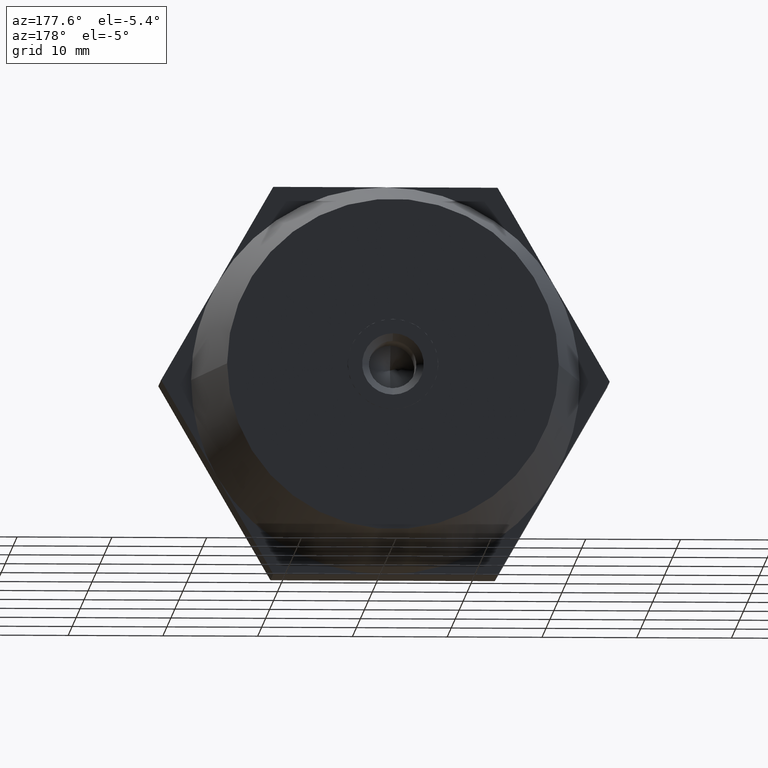
[diagram: clean part render]
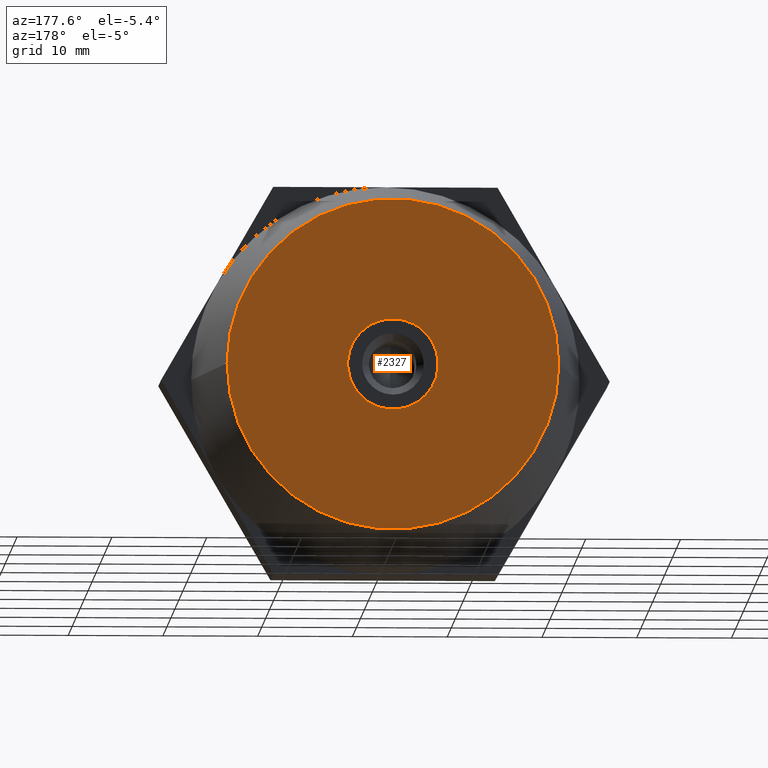
[diagram: same view with one face highlighted and labeled with its STEP entity id]
A machine part, auxiliary view. The second image highlights one B-rep face of the part: STEP entity #2327.
In plain terms, the highlighted planar face has unit normal (-0, 1, 0).
Its self-contained STEP definition (entity closure, byte-faithful):
#1 = FACE_BOUND ( 'NONE', #2667, .T. ) ;
#78 = EDGE_CURVE ( 'NONE', #3287, #2694, #2297, .T. ) ;
#163 = DIRECTION ( 'NONE',  ( 1.224646799147353900E-016, -1.000000000000000000, -0.0000000000000000000 ) ) ;
#173 = VERTEX_POINT ( 'NONE', #2713 ) ;
#183 = DIRECTION ( 'NONE',  ( -1.000000000000000000, 0.0000000000000000000, 0.0000000000000000000 ) ) ;
#189 = CIRCLE ( 'NONE', #2443, 4.772500000000000000 ) ;
#215 = CARTESIAN_POINT ( 'NONE',  ( -1.637040452729150500E-030, 22.50000000000000000, -4.772500000000000000 ) ) ;
#252 = ORIENTED_EDGE ( 'NONE', *, *, #78, .T. ) ;
#327 = VECTOR ( 'NONE', #3659, 1000.000000000000000 ) ;
#333 = DIRECTION ( 'NONE',  ( -1.000000000000000000, 0.0000000000000000000, 1.776356839400250500E-015 ) ) ;
#371 = LINE ( 'NONE', #764, #3218 ) ;
#374 = CARTESIAN_POINT ( 'NONE',  ( 2.648668211795610200, 22.50000000000000000, -3.970052008957039900 ) ) ;
#388 = VERTEX_POINT ( 'NONE', #2293 ) ;
#400 = ORIENTED_EDGE ( 'NONE', *, *, #1738, .T. ) ;
#500 = VERTEX_POINT ( 'NONE', #3512 ) ;
#522 = CARTESIAN_POINT ( 'NONE',  ( -5.844626848930769500E-016, 22.50000000000000000, 0.0000000000000000000 ) ) ;
#615 = VECTOR ( 'NONE', #897, 1000.000000000000000 ) ;
#628 = DIRECTION ( 'NONE',  ( -1.224646799147353900E-016, 1.000000000000000000, 0.0000000000000000000 ) ) ;
#681 = DIRECTION ( 'NONE',  ( -0.8660254037844387100, -1.060575238724905700E-016, -0.4999999999999998900 ) ) ;
#735 = DIRECTION ( 'NONE',  ( -1.224646799147353900E-016, 1.000000000000000000, 0.0000000000000000000 ) ) ;
#752 = EDGE_CURVE ( 'NONE', #388, #3698, #2258, .T. ) ;
#764 = CARTESIAN_POINT ( 'NONE',  ( -15.50625000000000000, 22.50000000000000000, 3.453276297590429900 ) ) ;
#779 = CARTESIAN_POINT ( 'NONE',  ( -2.113831788204225200, 22.50000000000000000, 4.278839962089930000 ) ) ;
#800 = CARTESIAN_POINT ( 'NONE',  ( -2.624579619658254900E-031, 22.50000000000000000, 0.0000000000000000000 ) ) ;
#827 = CARTESIAN_POINT ( 'NONE',  ( -4.762500000000000200, 22.50000000000000000, 1.607200604843199800E-014 ) ) ;
#849 = ORIENTED_EDGE ( 'NONE', *, *, #1208, .T. ) ;
#897 = DIRECTION ( 'NONE',  ( -0.8660254037844387100, -1.060575238724907700E-016, 0.4999999999999998900 ) ) ;
#908 = AXIS2_PLACEMENT_3D ( 'NONE', #3618, #1204, #3375 ) ;
#944 = DIRECTION ( 'NONE',  ( 1.224646799147353900E-016, -1.000000000000000000, -0.0000000000000000000 ) ) ;
#956 = CARTESIAN_POINT ( 'NONE',  ( -5.844626848930769500E-016, 22.50000000000000000, 0.0000000000000000000 ) ) ;
#998 = LINE ( 'NONE', #3295, #615 ) ;
#1011 = DIRECTION ( 'NONE',  ( 1.261786539621752000E-015, 1.545242846954995000E-031, -1.000000000000000000 ) ) ;
#1096 = DIRECTION ( 'NONE',  ( 1.224646799147353900E-016, -1.000000000000000000, -0.0000000000000000000 ) ) ;
#1106 = VERTEX_POINT ( 'NONE', #779 ) ;
#1204 = DIRECTION ( 'NONE',  ( 1.224646799147353900E-016, -1.000000000000000000, -0.0000000000000000000 ) ) ;
#1208 = EDGE_CURVE ( 'NONE', #3572, #388, #3717, .T. ) ;
#1247 = AXIS2_PLACEMENT_3D ( 'NONE', #3145, #735, #2856 ) ;
#1249 = CARTESIAN_POINT ( 'NONE',  ( -2.648668211795669700, 22.50000000000000000, -3.970052008956999900 ) ) ;
#1290 = ORIENTED_EDGE ( 'NONE', *, *, #2232, .T. ) ;
#1342 = VERTEX_POINT ( 'NONE', #1249 ) ;
#1344 = EDGE_CURVE ( 'NONE', #500, #1768, #1744, .T. ) ;
#1349 = EDGE_CURVE ( 'NONE', #3059, #2109, #1922, .T. ) ;
#1366 = DIRECTION ( 'NONE',  ( 0.8660254037844383700, 1.060575238724906500E-016, -0.5000000000000003300 ) ) ;
#1407 = CIRCLE ( 'NONE', #2536, 4.772500000000000000 ) ;
#1408 = ORIENTED_EDGE ( 'NONE', *, *, #1481, .T. ) ;
#1423 = DIRECTION ( 'NONE',  ( -1.000000000000000000, 0.0000000000000000000, 0.0000000000000000000 ) ) ;
#1456 = ORIENTED_EDGE ( 'NONE', *, *, #1349, .T. ) ;
#1481 = EDGE_CURVE ( 'NONE', #2109, #3572, #189, .T. ) ;
#1485 = AXIS2_PLACEMENT_3D ( 'NONE', #1647, #163, #183 ) ;
#1540 = VECTOR ( 'NONE', #681, 1000.000000000000000 ) ;
#1550 = DIRECTION ( 'NONE',  ( -1.000000000000000000, 0.0000000000000000000, 0.0000000000000000000 ) ) ;
#1589 = VECTOR ( 'NONE', #2305, 1000.000000000000000 ) ;
#1592 = CARTESIAN_POINT ( 'NONE',  ( -4.762500000000000200, 22.50000000000000000, 0.3087879531329210700 ) ) ;
#1647 = CARTESIAN_POINT ( 'NONE',  ( -5.844626848930769500E-016, 22.50000000000000000, 0.0000000000000000000 ) ) ;
#1669 = CARTESIAN_POINT ( 'NONE',  ( 4.762500000000000200, 22.50000000000000000, -0.3087879531334870600 ) ) ;
#1679 = EDGE_CURVE ( 'NONE', #3707, #2512, #3633, .T. ) ;
#1681 = CARTESIAN_POINT ( 'NONE',  ( 4.762500000000000200, 22.50000000000000000, 0.0000000000000000000 ) ) ;
#1699 = LINE ( 'NONE', #2825, #1540 ) ;
#1710 = EDGE_CURVE ( 'NONE', #2694, #3287, #3083, .T. ) ;
#1738 = EDGE_CURVE ( 'NONE', #1768, #3325, #3593, .T. ) ;
#1744 = CIRCLE ( 'NONE', #908, 4.772500000000000000 ) ;
#1762 = AXIS2_PLACEMENT_3D ( 'NONE', #800, #2904, #2006 ) ;
#1768 = VERTEX_POINT ( 'NONE', #1592 ) ;
#1812 = DIRECTION ( 'NONE',  ( -1.000000000000000000, -1.982541115402065400E-016, 0.0000000000000000000 ) ) ;
#1912 = AXIS2_PLACEMENT_3D ( 'NONE', #522, #1096, #3221 ) ;
#1922 = LINE ( 'NONE', #3364, #327 ) ;
#1930 = ORIENTED_EDGE ( 'NONE', *, *, #3170, .T. ) ;
#2006 = DIRECTION ( 'NONE',  ( -1.000000000000000000, -1.982541115402065400E-016, 0.0000000000000000000 ) ) ;
#2055 = AXIS2_PLACEMENT_3D ( 'NONE', #2454, #3338, #333 ) ;
#2085 = ORIENTED_EDGE ( 'NONE', *, *, #2702, .T. ) ;
#2109 = VERTEX_POINT ( 'NONE', #374 ) ;
#2122 = CARTESIAN_POINT ( 'NONE',  ( 17.50000000000000000, 22.50000000000000400, 0.0000000000000000000 ) ) ;
#2231 = ORIENTED_EDGE ( 'NONE', *, *, #3584, .T. ) ;
#2232 = EDGE_CURVE ( 'NONE', #1106, #500, #1699, .T. ) ;
#2258 = CIRCLE ( 'NONE', #2390, 4.772500000000000000 ) ;
#2276 = VECTOR ( 'NONE', #1011, 1000.000000000000000 ) ;
#2289 = ORIENTED_EDGE ( 'NONE', *, *, #1679, .T. ) ;
#2293 = CARTESIAN_POINT ( 'NONE',  ( 4.762500000000000200, 22.50000000000000000, 0.3087879531335155400 ) ) ;
#2297 = CIRCLE ( 'NONE', #3026, 17.50000000000000000 ) ;
#2305 = DIRECTION ( 'NONE',  ( 0.0000000000000000000, 0.0000000000000000000, 1.000000000000000000 ) ) ;
#2327 = ADVANCED_FACE ( 'NONE', ( #2459, #1 ), #3174, .T. ) ;
#2333 = CARTESIAN_POINT ( 'NONE',  ( -5.844626848930769500E-016, 22.50000000000000000, 0.0000000000000000000 ) ) ;
#2375 = EDGE_CURVE ( 'NONE', #1342, #3707, #371, .T. ) ;
#2390 = AXIS2_PLACEMENT_3D ( 'NONE', #956, #944, #1550 ) ;
#2396 = CARTESIAN_POINT ( 'NONE',  ( -2.624579619658254900E-031, 22.50000000000000000, 0.0000000000000000000 ) ) ;
#2443 = AXIS2_PLACEMENT_3D ( 'NONE', #2333, #3525, #1423 ) ;
#2454 = CARTESIAN_POINT ( 'NONE',  ( -5.844626848930769500E-016, 22.50000000000000000, 0.0000000000000000000 ) ) ;
#2459 = FACE_OUTER_BOUND ( 'NONE', #2930, .T. ) ;
#2512 = VERTEX_POINT ( 'NONE', #215 ) ;
#2536 = AXIS2_PLACEMENT_3D ( 'NONE', #2658, #2924, #3242 ) ;
#2658 = CARTESIAN_POINT ( 'NONE',  ( -5.844626848930769500E-016, 22.50000000000000000, 0.0000000000000000000 ) ) ;
#2667 = EDGE_LOOP ( 'NONE', ( #1456, #1408, #849, #3207, #3692, #2085, #1290, #3564, #400, #2231, #3542, #2289, #1930 ) ) ;
#2694 = VERTEX_POINT ( 'NONE', #3366 ) ;
#2702 = EDGE_CURVE ( 'NONE', #173, #1106, #3136, .T. ) ;
#2713 = CARTESIAN_POINT ( 'NONE',  ( 2.113831788203889900, 22.50000000000000000, 4.278839962090089900 ) ) ;
#2825 = CARTESIAN_POINT ( 'NONE',  ( -15.50625000000000000, 22.50000000000000000, -3.453276297590414800 ) ) ;
#2856 = DIRECTION ( 'NONE',  ( -1.000000000000000000, -1.224646799147353900E-016, 0.0000000000000000000 ) ) ;
#2882 = CARTESIAN_POINT ( 'NONE',  ( 2.113831788204440200, 22.50000000000000000, -4.278839962089819900 ) ) ;
#2904 = DIRECTION ( 'NONE',  ( -1.224646799147353900E-016, 1.000000000000000000, 0.0000000000000000000 ) ) ;
#2924 = DIRECTION ( 'NONE',  ( 1.224646799147353900E-016, -1.000000000000000000, -0.0000000000000000000 ) ) ;
#2930 = EDGE_LOOP ( 'NONE', ( #252, #3405 ) ) ;
#3026 = AXIS2_PLACEMENT_3D ( 'NONE', #2396, #628, #1812 ) ;
#3059 = VERTEX_POINT ( 'NONE', #2882 ) ;
#3083 = CIRCLE ( 'NONE', #1762, 17.50000000000000000 ) ;
#3136 = CIRCLE ( 'NONE', #2055, 4.772500000000000000 ) ;
#3145 = CARTESIAN_POINT ( 'NONE',  ( -17.50000000000000000, 22.50000000000000000, 0.0000000000000000000 ) ) ;
#3170 = EDGE_CURVE ( 'NONE', #2512, #3059, #1407, .T. ) ;
#3174 = PLANE ( 'NONE',  #1247 ) ;
#3207 = ORIENTED_EDGE ( 'NONE', *, *, #752, .T. ) ;
#3218 = VECTOR ( 'NONE', #1366, 1000.000000000000100 ) ;
#3221 = DIRECTION ( 'NONE',  ( -1.000000000000000000, 0.0000000000000000000, 0.0000000000000000000 ) ) ;
#3242 = DIRECTION ( 'NONE',  ( -1.000000000000000000, 0.0000000000000000000, -8.881784197001252300E-016 ) ) ;
#3287 = VERTEX_POINT ( 'NONE', #2122 ) ;
#3295 = CARTESIAN_POINT ( 'NONE',  ( -10.74375000000000000, 22.50000000000000000, 11.70216826863721900 ) ) ;
#3325 = VERTEX_POINT ( 'NONE', #3733 ) ;
#3338 = DIRECTION ( 'NONE',  ( 1.224646799147353900E-016, -1.000000000000000000, -0.0000000000000000000 ) ) ;
#3364 = CARTESIAN_POINT ( 'NONE',  ( -10.74375000000000000, 22.50000000000000000, -11.70216826863728000 ) ) ;
#3366 = CARTESIAN_POINT ( 'NONE',  ( -17.50000000000000000, 22.49999999999999600, 2.326828918379970600E-015 ) ) ;
#3375 = DIRECTION ( 'NONE',  ( -1.000000000000000000, 0.0000000000000000000, 2.664535259100375700E-015 ) ) ;
#3405 = ORIENTED_EDGE ( 'NONE', *, *, #1710, .T. ) ;
#3512 = CARTESIAN_POINT ( 'NONE',  ( -2.648668211795810000, 22.50000000000000000, 3.970052008956909800 ) ) ;
#3525 = DIRECTION ( 'NONE',  ( 1.224646799147353900E-016, -1.000000000000000000, -0.0000000000000000000 ) ) ;
#3542 = ORIENTED_EDGE ( 'NONE', *, *, #2375, .T. ) ;
#3549 = CIRCLE ( 'NONE', #1912, 4.772500000000000000 ) ;
#3564 = ORIENTED_EDGE ( 'NONE', *, *, #1344, .T. ) ;
#3572 = VERTEX_POINT ( 'NONE', #1669 ) ;
#3584 = EDGE_CURVE ( 'NONE', #3325, #1342, #3549, .T. ) ;
#3593 = LINE ( 'NONE', #827, #2276 ) ;
#3617 = CARTESIAN_POINT ( 'NONE',  ( 2.648668211796104900, 22.50000000000000000, 3.970052008956710400 ) ) ;
#3618 = CARTESIAN_POINT ( 'NONE',  ( -5.844626848930769500E-016, 22.50000000000000000, 0.0000000000000000000 ) ) ;
#3633 = CIRCLE ( 'NONE', #1485, 4.772500000000000000 ) ;
#3659 = DIRECTION ( 'NONE',  ( 0.8660254037844387100, 1.060575238724905700E-016, 0.4999999999999998900 ) ) ;
#3692 = ORIENTED_EDGE ( 'NONE', *, *, #3755, .T. ) ;
#3698 = VERTEX_POINT ( 'NONE', #3617 ) ;
#3707 = VERTEX_POINT ( 'NONE', #3897 ) ;
#3717 = LINE ( 'NONE', #1681, #1589 ) ;
#3733 = CARTESIAN_POINT ( 'NONE',  ( -4.762500000000000200, 22.50000000000000000, -0.3087879531329330000 ) ) ;
#3755 = EDGE_CURVE ( 'NONE', #3698, #173, #998, .T. ) ;
#3897 = CARTESIAN_POINT ( 'NONE',  ( -2.113831788204390000, 22.50000000000000000, -4.278839962089850100 ) ) ;